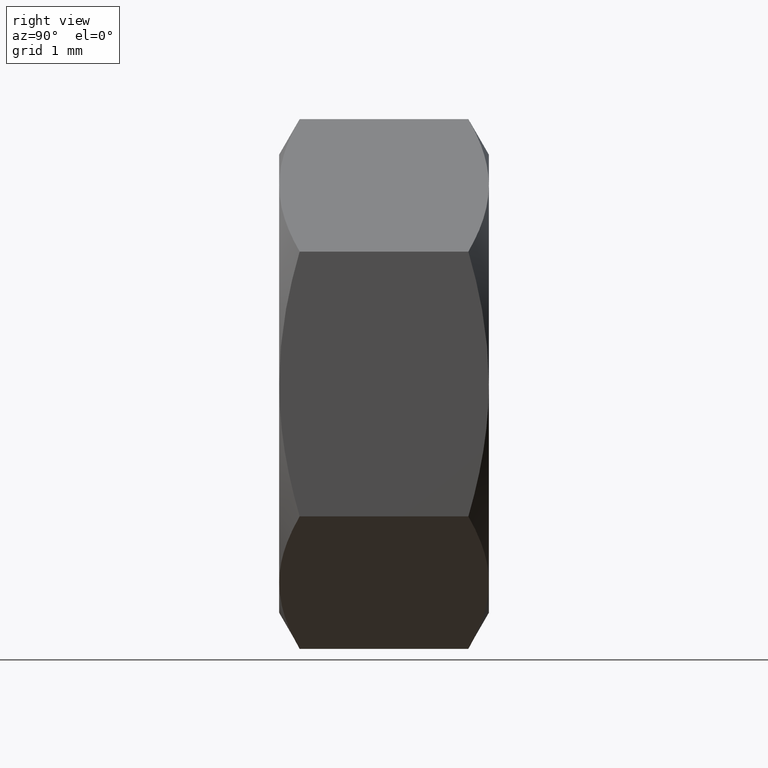
[diagram: clean part render]
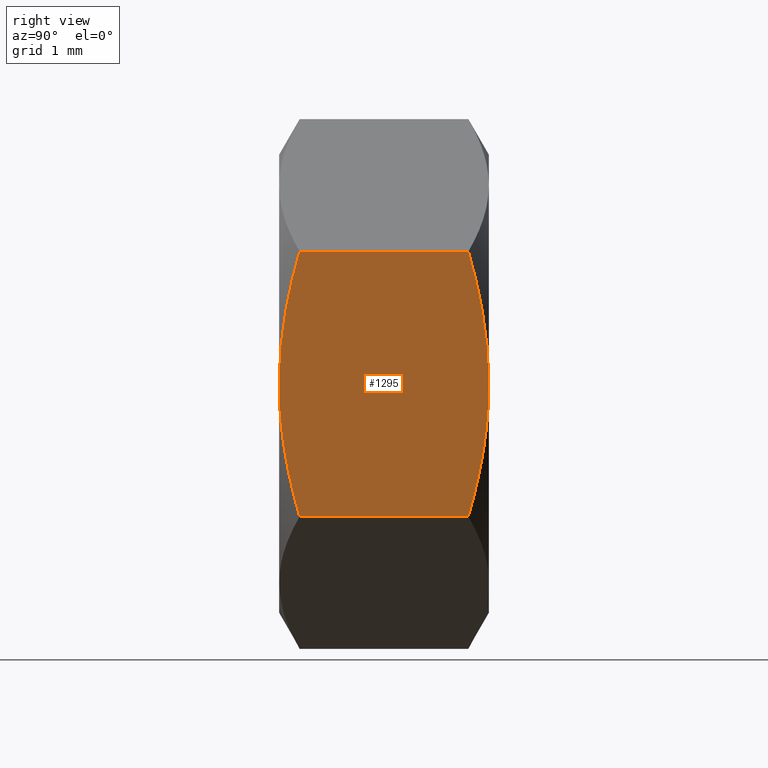
[diagram: same view with one face highlighted and labeled with its STEP entity id]
A machine part, right view. The second image highlights one B-rep face of the part: STEP entity #1295.
In plain terms, the highlighted planar face has unit normal (-1, 0, 0).
Its self-contained STEP definition (entity closure, byte-faithful):
#154 = CARTESIAN_POINT ( 'NONE',  ( 3.499999999999996900, 1.570560040290959400, -0.6813422211604707200 ) ) ;
#158 = ORIENTED_EDGE ( 'NONE', *, *, #213, .F. ) ;
#163 = DIRECTION ( 'NONE',  ( 4.292327424963308300E-016, 0.0000000000000000000, 1.000000000000000000 ) ) ;
#166 = CARTESIAN_POINT ( 'NONE',  ( 3.499999999999998200, -1.460261472206188000, 1.362879585871371400 ) ) ;
#170 = CARTESIAN_POINT ( 'NONE',  ( 3.499999999999995600, 1.382421078745973900, -1.691537666044970600 ) ) ;
#171 = CARTESIAN_POINT ( 'NONE',  ( 3.500000000000001300, -1.600000000000000100, -1.502314598737158200E-015 ) ) ;
#188 = CARTESIAN_POINT ( 'NONE',  ( 3.499999999999997800, -1.287392608830366900, 2.020725942163667600 ) ) ;
#213 = EDGE_CURVE ( 'NONE', #727, #734, #1948, .T. ) ;
#255 = B_SPLINE_CURVE_WITH_KNOTS ( 'NONE', 3,
 ( #1248, #2002, #154, #610, #170, #1229 ),
 .UNSPECIFIED., .F., .F.,
 ( 4, 2, 4 ),
 ( 0.01298168697682230500, 0.01400405614601536200, 0.01502642531520842000 ),
 .UNSPECIFIED. ) ;
#282 = CARTESIAN_POINT ( 'NONE',  ( 3.499999999999997300, 1.600000000000003000, 0.3423287572276435000 ) ) ;
#325 = ORIENTED_EDGE ( 'NONE', *, *, #335, .T. ) ;
#327 = CARTESIAN_POINT ( 'NONE',  ( 3.499999999999998200, -1.600000000000002800, -0.3420461485635049000 ) ) ;
#335 = EDGE_CURVE ( 'NONE', #395, #670, #1167, .T. ) ;
#349 = EDGE_LOOP ( 'NONE', ( #1269, #325, #1584, #1981, #1478, #158 ) ) ;
#395 = VERTEX_POINT ( 'NONE', #1232 ) ;
#458 = DIRECTION ( 'NONE',  ( -1.000000000000000000, 0.0000000000000000000, 4.292327424963308300E-016 ) ) ;
#470 = VERTEX_POINT ( 'NONE', #503 ) ;
#503 = CARTESIAN_POINT ( 'NONE',  ( 3.499999999999996000, 1.287392608830353800, -2.020725942163716900 ) ) ;
#525 = AXIS2_PLACEMENT_3D ( 'NONE', #1705, #458, #163 ) ;
#610 = CARTESIAN_POINT ( 'NONE',  ( 3.499999999999996400, 1.461860585609731100, -1.355280572397303400 ) ) ;
#617 = EDGE_CURVE ( 'NONE', #670, #1001, #1627, .T. ) ;
#626 = PLANE ( 'NONE',  #525 ) ;
#636 = CARTESIAN_POINT ( 'NONE',  ( 3.499999999999997300, -1.600000000000003000, 0.3423287572276435000 ) ) ;
#643 = FACE_OUTER_BOUND ( 'NONE', #349, .T. ) ;
#670 = VERTEX_POINT ( 'NONE', #1693 ) ;
#679 = DIRECTION ( 'NONE',  ( -0.0000000000000000000, -1.000000000000000000, -0.0000000000000000000 ) ) ;
#727 = VERTEX_POINT ( 'NONE', #773 ) ;
#734 = VERTEX_POINT ( 'NONE', #1249 ) ;
#767 = CARTESIAN_POINT ( 'NONE',  ( 3.499999999999998200, 1.381757144928153600, 1.693837600255594600 ) ) ;
#773 = CARTESIAN_POINT ( 'NONE',  ( 3.499999999999997800, 1.287392608830366900, 2.020725942163667600 ) ) ;
#825 = CARTESIAN_POINT ( 'NONE',  ( 3.499999999999997800, 1.600000000000000100, 2.020725942163667600 ) ) ;
#967 = CARTESIAN_POINT ( 'NONE',  ( 3.499999999999996000, -1.287392608830353800, -2.020725942163716900 ) ) ;
#992 = EDGE_CURVE ( 'NONE', #727, #395, #1963, .T. ) ;
#1001 = VERTEX_POINT ( 'NONE', #1939 ) ;
#1055 = VECTOR ( 'NONE', #679, 1000.000000000000000 ) ;
#1065 = CARTESIAN_POINT ( 'NONE',  ( 3.499999999999998200, 1.460261472206188000, 1.362879585871371400 ) ) ;
#1129 = CARTESIAN_POINT ( 'NONE',  ( 3.499999999999996400, -1.461860585609731100, -1.355280572397303400 ) ) ;
#1167 = B_SPLINE_CURVE_WITH_KNOTS ( 'NONE', 3,
 ( #188, #1411, #166, #1259, #636, #1417 ),
 .UNSPECIFIED., .F., .F.,
 ( 4, 2, 4 ),
 ( 0.01093525921502721400, 0.01195847309592475800, 0.01298168697682230500 ),
 .UNSPECIFIED. ) ;
#1195 = CARTESIAN_POINT ( 'NONE',  ( 3.499999999999996900, 1.600000000000000100, -1.502314598737156700E-015 ) ) ;
#1207 = CARTESIAN_POINT ( 'NONE',  ( 3.499999999999997300, 1.569728145325836900, 0.6887644558481808000 ) ) ;
#1229 = CARTESIAN_POINT ( 'NONE',  ( 3.499999999999996000, 1.287392608830353800, -2.020725942163716900 ) ) ;
#1232 = CARTESIAN_POINT ( 'NONE',  ( 3.499999999999997800, -1.287392608830366900, 2.020725942163667600 ) ) ;
#1248 = CARTESIAN_POINT ( 'NONE',  ( 3.499999999999996900, 1.600000000000000100, -1.502314598737156700E-015 ) ) ;
#1249 = CARTESIAN_POINT ( 'NONE',  ( 3.499999999999996900, 1.600000000000000100, -1.502314598737156700E-015 ) ) ;
#1259 = CARTESIAN_POINT ( 'NONE',  ( 3.499999999999997300, -1.569728145325836900, 0.6887644558481808000 ) ) ;
#1269 = ORIENTED_EDGE ( 'NONE', *, *, #992, .T. ) ;
#1288 = DIRECTION ( 'NONE',  ( -0.0000000000000000000, -1.000000000000000000, -0.0000000000000000000 ) ) ;
#1295 = ADVANCED_FACE ( 'NONE', ( #643 ), #626, .F. ) ;
#1327 = EDGE_CURVE ( 'NONE', #734, #470, #255, .T. ) ;
#1411 = CARTESIAN_POINT ( 'NONE',  ( 3.499999999999998200, -1.381757144928153600, 1.693837600255594600 ) ) ;
#1417 = CARTESIAN_POINT ( 'NONE',  ( 3.500000000000001300, -1.600000000000000100, -1.502314598737158200E-015 ) ) ;
#1439 = CARTESIAN_POINT ( 'NONE',  ( 3.499999999999996900, -1.570560040290959400, -0.6813422211604707200 ) ) ;
#1451 = EDGE_CURVE ( 'NONE', #470, #1001, #1728, .T. ) ;
#1478 = ORIENTED_EDGE ( 'NONE', *, *, #1327, .F. ) ;
#1511 = CARTESIAN_POINT ( 'NONE',  ( 3.499999999999997800, 1.287392608830366900, 2.020725942163667600 ) ) ;
#1584 = ORIENTED_EDGE ( 'NONE', *, *, #617, .T. ) ;
#1627 = B_SPLINE_CURVE_WITH_KNOTS ( 'NONE', 3,
 ( #171, #327, #1439, #1129, #1740, #967 ),
 .UNSPECIFIED., .F., .F.,
 ( 4, 2, 4 ),
 ( 0.01298168697682230500, 0.01400405614601536200, 0.01502642531520842000 ),
 .UNSPECIFIED. ) ;
#1682 = VECTOR ( 'NONE', #1288, 1000.000000000000000 ) ;
#1693 = CARTESIAN_POINT ( 'NONE',  ( 3.500000000000001300, -1.600000000000000100, -1.502314598737158200E-015 ) ) ;
#1705 = CARTESIAN_POINT ( 'NONE',  ( 3.499999999999997800, 1.600000000000000100, 2.020725942163667600 ) ) ;
#1728 = LINE ( 'NONE', #1739, #1682 ) ;
#1739 = CARTESIAN_POINT ( 'NONE',  ( 3.499999999999996000, 1.600000000000000100, -2.020725942163716900 ) ) ;
#1740 = CARTESIAN_POINT ( 'NONE',  ( 3.499999999999995600, -1.382421078745973900, -1.691537666044970600 ) ) ;
#1939 = CARTESIAN_POINT ( 'NONE',  ( 3.499999999999996000, -1.287392608830353800, -2.020725942163716900 ) ) ;
#1948 = B_SPLINE_CURVE_WITH_KNOTS ( 'NONE', 3,
 ( #1511, #767, #1065, #1207, #282, #1195 ),
 .UNSPECIFIED., .F., .F.,
 ( 4, 2, 4 ),
 ( 0.01093525921502721400, 0.01195847309592475800, 0.01298168697682230500 ),
 .UNSPECIFIED. ) ;
#1963 = LINE ( 'NONE', #825, #1055 ) ;
#1981 = ORIENTED_EDGE ( 'NONE', *, *, #1451, .F. ) ;
#2002 = CARTESIAN_POINT ( 'NONE',  ( 3.499999999999998200, 1.600000000000002800, -0.3420461485635049000 ) ) ;